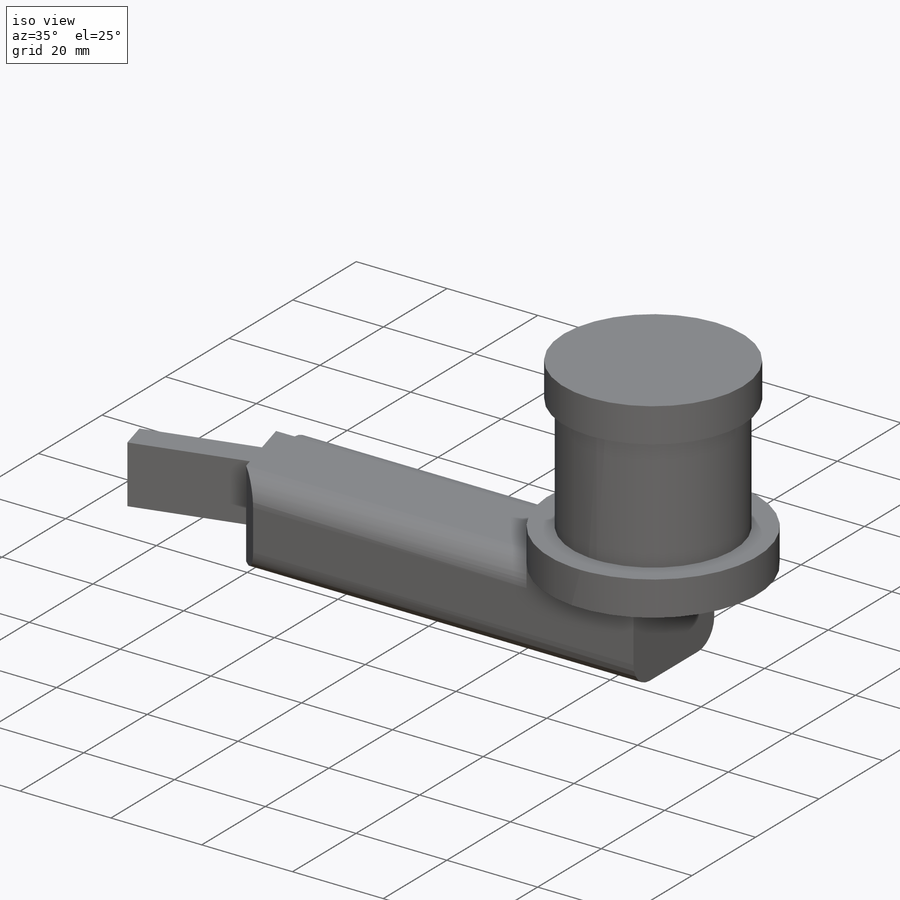
[diagram: iso view]
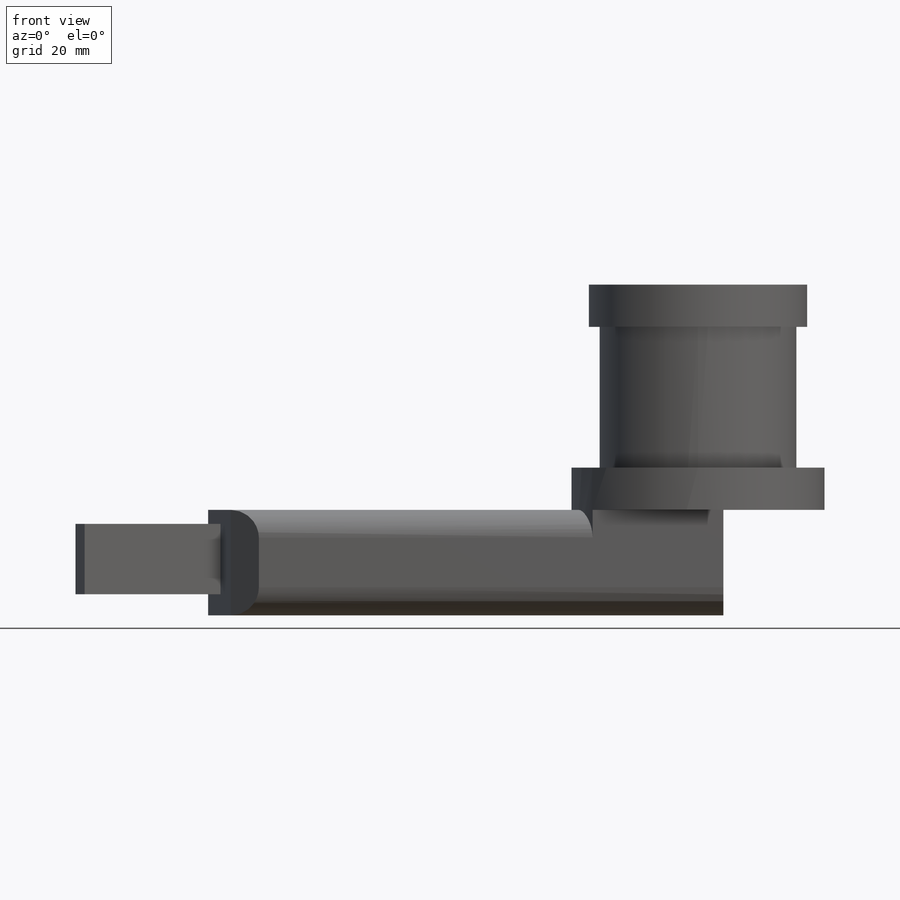
[diagram: front view]
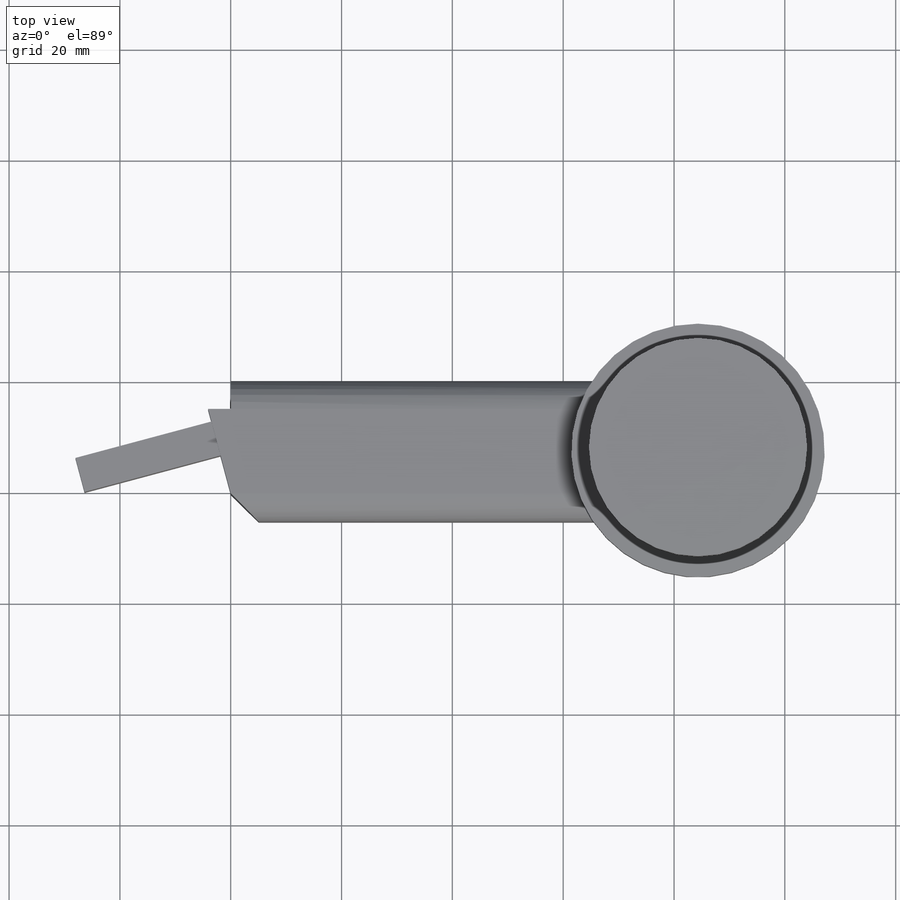
[diagram: top view]
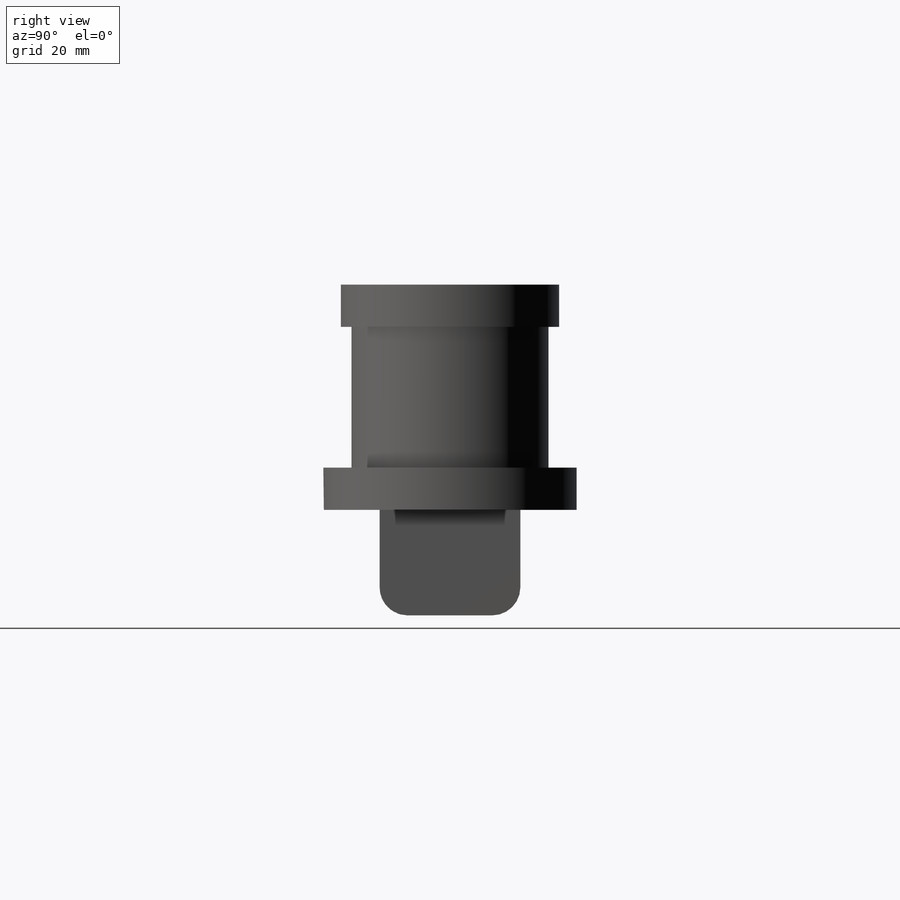
[diagram: right view]
SOLIDWORKS PART (.sldprt)
format: sldprt  version: not decoded by parser v0  size: 435,712 bytes
history: native  units: mm
features: sketch x6, extrude x6, chamfer x2, material x1, fillet x1 (+11 scaffold rows collapsed)
feature tree (27):
  scaffold x11  (default folders/planes/origin — collapsed)
  material  "Material <not specified>"
  sketch  "Sketch1"  dims[D1=88.9mm D2=19.05mm]
  extrude  "Boss-Extrude1"  Depth=25.4mm
  sketch  "Sketch2"  dims[D1=45.72mm D2=4.572mm D3=12.7mm]
  extrude  "Boss-Extrude2"  Depth=7.62mm
  sketch  "Sketch3"  dims[D1=35.56mm]
  extrude  "Boss-Extrude3"  Depth=25.4mm
  sketch  "Sketch4"  dims[D1=39.37mm]
  extrude  "Boss-Extrude4"  Depth=7.62mm
  fillet  "Fillet1"  Radius=5.08mm
  sketch  "Sketch5"
  extrude  "Boss-Extrude5"  Depth=7.62mm
  chamfer  "Chamfer1"  Distance=7.62mm Angle=75deg
  sketch  "Sketch7"  dims[D1=12.7mm D2=6.35mm D3=3.81mm D4=3.81mm]
  extrude  "Boss-Extrude6"  Depth=25.4mm
  chamfer  "Chamfer2"  Distance=5.08mm Angle=45deg
decode coverage: 14 of 15 modeling features carry decoded parameters
note: suppression state not decoded; provenance and decode notes live in map.json
